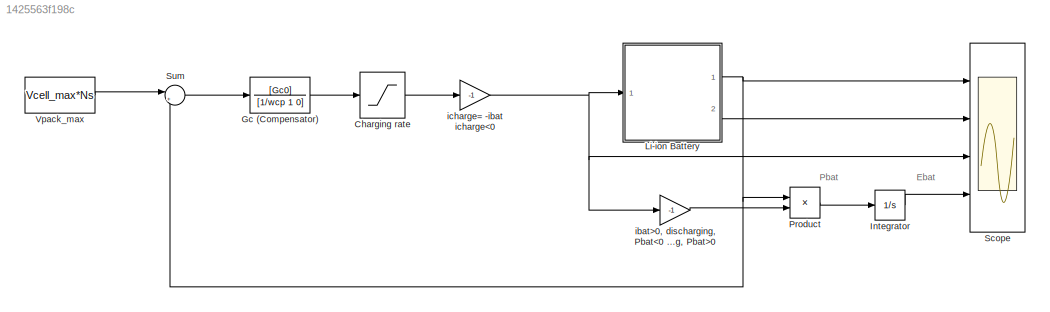
MODEL slx_1425563f198c
KIND model
CONFIG AbsTol = auto
CONFIG FixedStep = auto
CONFIG MaxStep = auto
CONFIG MinStep = auto
CONFIG RelTol = 1e-3
CONFIG SampleTimeConstraint = Unconstrained
CONFIG Solver = VariableStepAuto
CONFIG SolverMode = Auto
CONFIG SolverName = VariableStepAuto
CONFIG StartTime = 0.0
CONFIG StopTime = 6000
BLOCK [Saturate] Charging rate
  InputPortMap = u0
  LowerLimit = 0
  Ports = [1, 1]
  UpperLimit = Crate
BLOCK [TransferFcn] Gc (Compensator)
  Denominator = [1/wcp 1 0]
  Numerator = [Gc0]
BLOCK [Integrator] Integrator
  Ports = [1, 1]
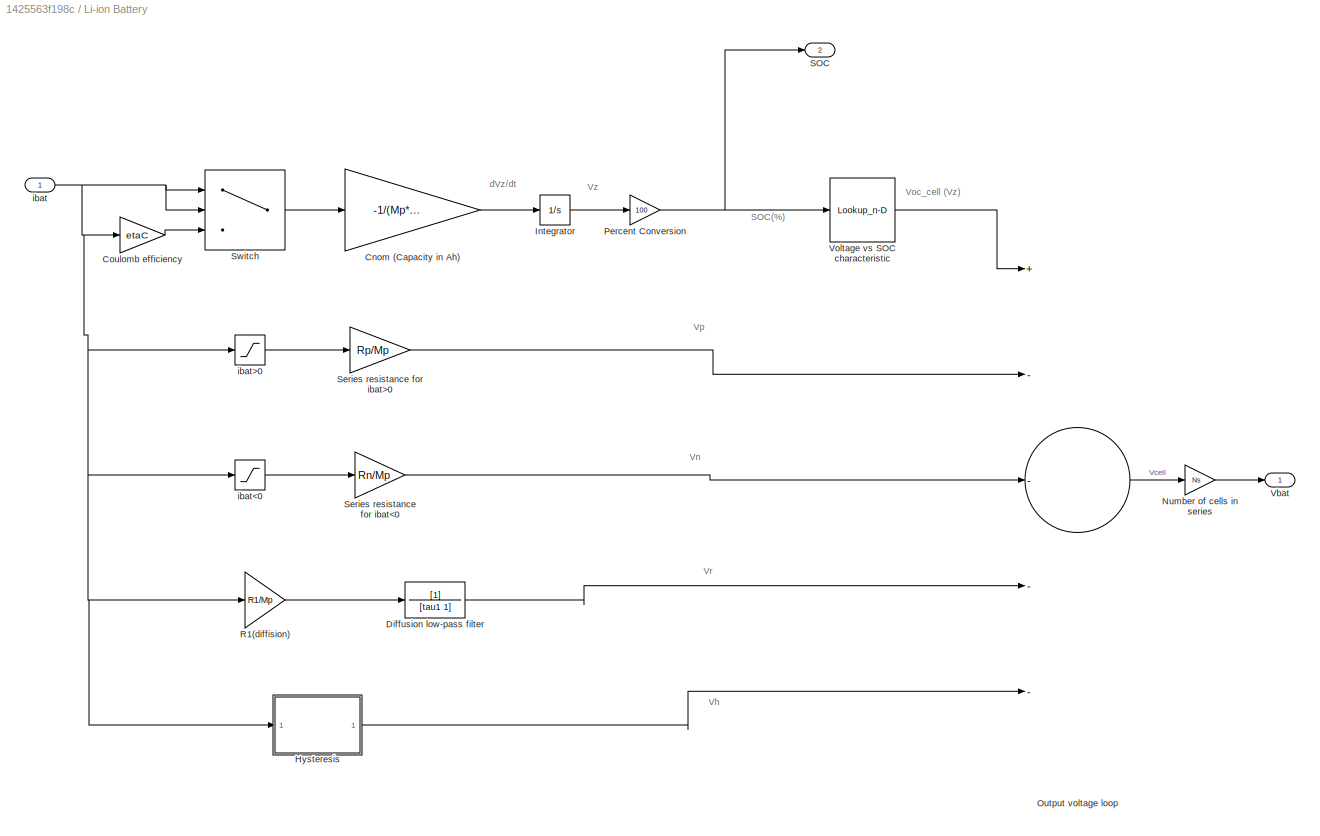
BLOCK [SubSystem] Li-ion Battery
  Ports = [1, 2]
  RequestExecContextInheritance = off
  Variant = off
BLOCK [Gain] Li-ion Battery/Cnom (Capacity in Ah)
  Gain = -1/(Mp*Cnom*3600)
  OutDataTypeStr = Inherit: Inherit via internal rule
  ParamDataTypeStr = Inherit: Inherit via internal rule
  SaturateOnIntegerOverflow = off
BLOCK [Gain] Li-ion Battery/Coulomb efficiency
  Gain = etaC
  OutDataTypeStr = Inherit: Inherit via internal rule
  ParamDataTypeStr = Inherit: Inherit via internal rule
  SaturateOnIntegerOverflow = off
BLOCK [TransferFcn] Li-ion Battery/Diffusion low-pass filter
  Denominator = [tau1 1]
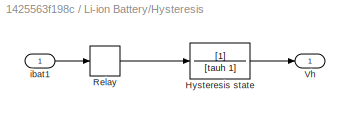
BLOCK [SubSystem] Li-ion Battery/Hysteresis
  Ports = [1, 1]
  RequestExecContextInheritance = off
  Variant = off
BLOCK [TransferFcn] Li-ion Battery/Hysteresis/Hysteresis state
  Denominator = [tauh 1]
BLOCK [Relay] Li-ion Battery/Hysteresis/Relay
  InputProcessing = Elements as channels (sample based)
  OffOutputValue = -Vm
  OffSwitchValue = -0.01
  OnOutputValue = Vm
  OnSwitchValue = 0.01
BLOCK [Outport] Li-ion Battery/Hysteresis/Vh
  IconDisplay = Port number
BLOCK [Inport] Li-ion Battery/Hysteresis/ibat1
  IconDisplay = Port number
BLOCK [Integrator] Li-ion Battery/Integrator
  InitialCondition = SOC_0
  LimitOutput = on
  LowerSaturationLimit = 0
  Ports = [1, 1]
  UpperSaturationLimit = SOC_1
BLOCK [Gain] Li-ion Battery/Number of cells in series
  Gain = Ns
  OutDataTypeStr = Inherit: Inherit via internal rule
  ParamDataTypeStr = Inherit: Inherit via internal rule
  SaturateOnIntegerOverflow = off
BLOCK [Sum] Li-ion Battery/Output voltage loop
  InputSameDT = off
  Inputs = +----
  OutDataTypeStr = Inherit: Inherit via internal rule
  Ports = [5, 1]
  SaturateOnIntegerOverflow = off
BLOCK [Gain] Li-ion Battery/Percent Conversion 
  Gain = 100
  OutDataTypeStr = Inherit: Inherit via internal rule
  ParamDataTypeStr = Inherit: Inherit via internal rule
  SaturateOnIntegerOverflow = off
BLOCK [Gain] Li-ion Battery/R1(diffision)
  Gain = R1/Mp
  OutDataTypeStr = Inherit: Inherit via internal rule
  ParamDataTypeStr = Inherit: Inherit via internal rule
  SaturateOnIntegerOverflow = off
BLOCK [Outport] Li-ion Battery/SOC
  IconDisplay = Port number
  Port = 2
BLOCK [Gain] Li-ion Battery/Series resistance for ibat<0
  Gain = Rn/Mp
  OutDataTypeStr = Inherit: Inherit via internal rule
  ParamDataTypeStr = Inherit: Inherit via internal rule
  SaturateOnIntegerOverflow = off
BLOCK [Gain] Li-ion Battery/Series resistance for ibat>0
  Gain = Rp/Mp
  OutDataTypeStr = Inherit: Inherit via internal rule
  ParamDataTypeStr = Inherit: Inherit via internal rule
  SaturateOnIntegerOverflow = off
BLOCK [Switch] Li-ion Battery/Switch
  InputSameDT = off
  SaturateOnIntegerOverflow = off
BLOCK [Outport] Li-ion Battery/Vbat
  IconDisplay = Port number
BLOCK [Lookup_n-D] Li-ion Battery/Voltage vs SOC characteristic
  BreakpointsForDimension1 = [0:9900]/100
  InternalRulePriority = Speed
  NumberOfTableDimensions = 1
  Ports = [1, 1]
  RndMeth = Simplest
  Table = V_soc
BLOCK [Inport] Li-ion Battery/ibat
  IconDisplay = Port number
BLOCK [Saturate] Li-ion Battery/ibat<0
  InputPortMap = u0
  LowerLimit = -inf
  Ports = [1, 1]
  UpperLimit = 0
BLOCK [Saturate] Li-ion Battery/ibat>0
  InputPortMap = u0
  LowerLimit = 0
  Ports = [1, 1]
  UpperLimit = inf
BLOCK [Product] Product
  InputSameDT = off
  OutDataTypeStr = Inherit: Inherit via internal rule
  Ports = [2, 1]
  RndMeth = Floor
  SaturateOnIntegerOverflow = off
BLOCK [Scope] Scope
  NumInputPorts = 4
  Ports = [4]
  ScopeSpecificationString = Simulink.scopes.TimeScopeBlockCfg('CurrentConfiguration', extmgr.ConfigurationSet(extmgr.Configuration('Core','General UI',true),extmgr.Configuration('Core','Source UI',true),extmgr.Configuration('Sources','WiredSimulink',true),extmgr.Configuration('Visuals','Time Domain',true,'SerializedDisplays',{struct('MinYLimReal','349.36691','MaxYLimReal','375.21594','YLabelReal','','MinYLimMag','349.36691',...<+3380ch>
BLOCK [Sum] Sum
  IconShape = round
  InputSameDT = off
  Inputs = |+-
  OutDataTypeStr = Inherit: Inherit via internal rule
  Ports = [2, 1]
  SaturateOnIntegerOverflow = off
BLOCK [Constant] Vpack_max
  Value = Vcell_max*Ns
BLOCK [Gain] ibat>0, discharging, Pbat<0 ibat<0, charging, Pbat>0
  Gain = -1
  OutDataTypeStr = Inherit: Inherit via internal rule
  ParamDataTypeStr = Inherit: Inherit via internal rule
  SaturateOnIntegerOverflow = off
BLOCK [Gain] icharge= -ibat icharge<0
  Gain = -1
  OutDataTypeStr = Inherit: Inherit via internal rule
  ParamDataTypeStr = Inherit: Inherit via internal rule
  SaturateOnIntegerOverflow = off
ANNOTATION (root): Ebat
ANNOTATION (root): Pbat
ANNOTATION Li-ion Battery: SOC(%)
ANNOTATION Li-ion Battery: Vh
ANNOTATION Li-ion Battery: Vn
ANNOTATION Li-ion Battery: Voc_cell (Vz)
ANNOTATION Li-ion Battery: Vp
ANNOTATION Li-ion Battery: Vr
ANNOTATION Li-ion Battery: Vz
ANNOTATION Li-ion Battery: dVz/dt
LINE Charging rate:1 -> icharge= -ibat icharge<0:1
LINE Gc (Compensator):1 -> Charging rate:1
LINE Integrator:1 -> Scope:4
LINE Li-ion Battery/Cnom (Capacity in Ah):1 -> Li-ion Battery/Integrator:1
LINE Li-ion Battery/Coulomb efficiency:1 -> Li-ion Battery/Switch:3
LINE Li-ion Battery/Diffusion low-pass filter:1 -> Li-ion Battery/Output voltage loop:4
LINE Li-ion Battery/Hysteresis/Hysteresis state:1 -> Li-ion Battery/Hysteresis/Vh:1
LINE Li-ion Battery/Hysteresis/Relay:1 -> Li-ion Battery/Hysteresis/Hysteresis state:1
LINE Li-ion Battery/Hysteresis/ibat1:1 -> Li-ion Battery/Hysteresis/Relay:1
LINE Li-ion Battery/Hysteresis:1 -> Li-ion Battery/Output voltage loop:5
LINE Li-ion Battery/Integrator:1 -> Li-ion Battery/Percent Conversion :1
LINE Li-ion Battery/Number of cells in series:1 -> Li-ion Battery/Vbat:1
LINE Li-ion Battery/Output voltage loop:1 -> Li-ion Battery/Number of cells in series:1
NET Li-ion Battery/Percent Conversion :1 -> Li-ion Battery/SOC:1, Li-ion Battery/Voltage vs SOC characteristic:1
LINE Li-ion Battery/R1(diffision):1 -> Li-ion Battery/Diffusion low-pass filter:1
LINE Li-ion Battery/Series resistance for ibat<0:1 -> Li-ion Battery/Output voltage loop:3
LINE Li-ion Battery/Series resistance for ibat>0:1 -> Li-ion Battery/Output voltage loop:2
LINE Li-ion Battery/Switch:1 -> Li-ion Battery/Cnom (Capacity in Ah):1
LINE Li-ion Battery/Voltage vs SOC characteristic:1 -> Li-ion Battery/Output voltage loop:1
NET Li-ion Battery/ibat:1 -> Li-ion Battery/Coulomb efficiency:1, Li-ion Battery/Hysteresis:1, Li-ion Battery/R1(diffision):1, Li-ion Battery/Switch:1, Li-ion Battery/Switch:2, Li-ion Battery/ibat<0:1, Li-ion Battery/ibat>0:1
LINE Li-ion Battery/ibat<0:1 -> Li-ion Battery/Series resistance for ibat<0:1
LINE Li-ion Battery/ibat>0:1 -> Li-ion Battery/Series resistance for ibat>0:1
NET Li-ion Battery:1 -> Product:1, Scope:1, Sum:2
LINE Li-ion Battery:2 -> Scope:2
LINE Product:1 -> Integrator:1
LINE Sum:1 -> Gc (Compensator):1
LINE Vpack_max:1 -> Sum:1
LINE ibat>0, discharging, Pbat<0 ibat<0, charging, Pbat>0:1 -> Product:2
NET icharge= -ibat icharge<0:1 -> Li-ion Battery:1, Scope:3, ibat>0, discharging, Pbat<0 ibat<0, charging, Pbat>0:1
note: NET lines group one-source signal fan-out (src -> all destinations, sorted); 1:1 wires keep LINE
